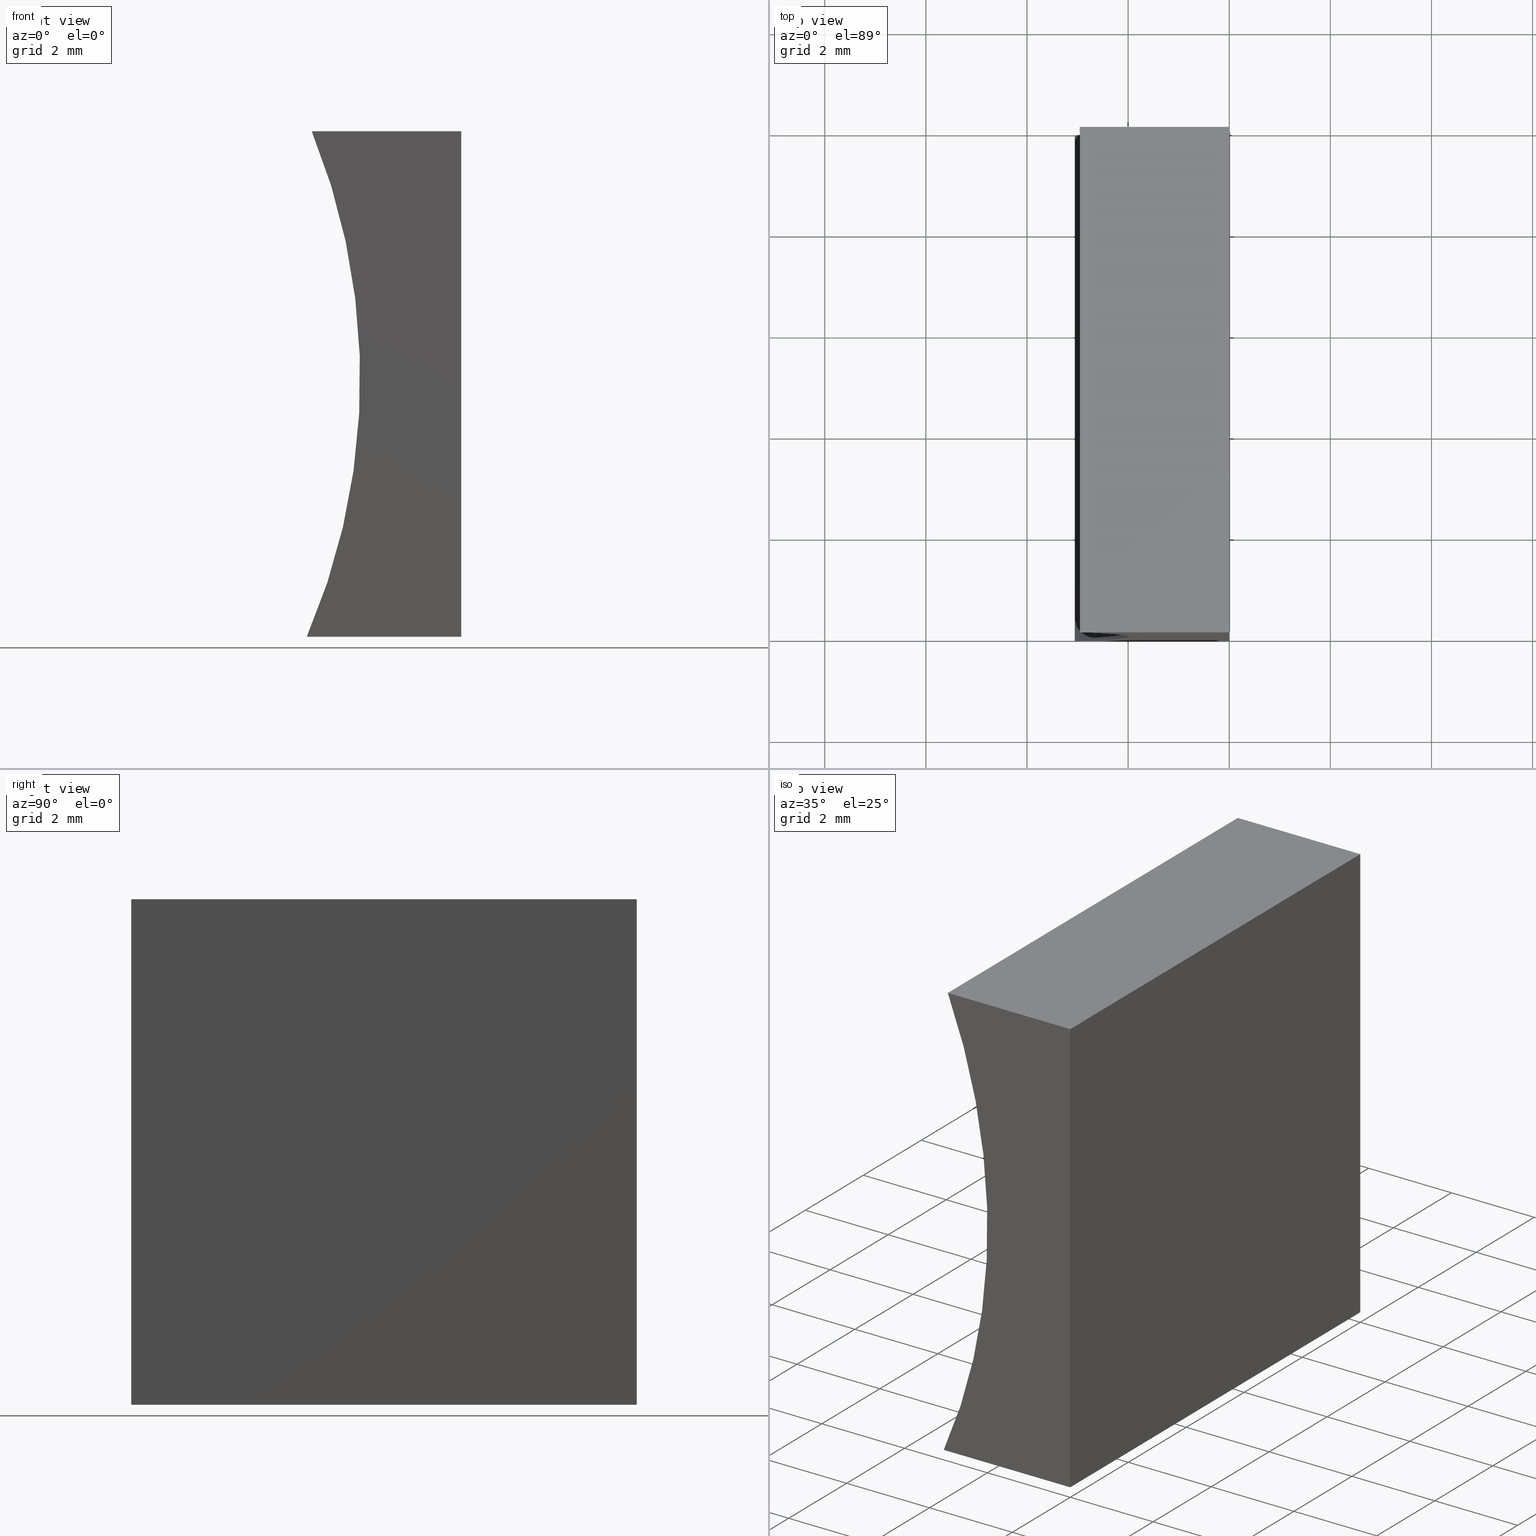
[diagram: canonical four-view strip — front | top / right | iso, engineering-drawing reading convention]
A machine part, canonical four-view strip (front | top / right | iso — engineering-drawing reading convention). The complete STEP part file that produces these views, byte-faithful:
ISO-10303-21;
HEADER;
FILE_DESCRIPTION (( 'STEP AP214' ),
    '1' );
FILE_NAME ('155336.STEP',
    '2019-06-27T03:36:32',
    ( 'user' ),
    ( '΢���й�' ),
    'SwSTEP 2.0',
    'SolidWorks 2016',
    '' );
FILE_SCHEMA (( 'AUTOMOTIVE_DESIGN' ));
ENDSEC;

DATA;
#1 = DIRECTION ( 'NONE',  ( -0.0000000000000000000, -1.000000000000000000, -0.0000000000000000000 ) ) ;
#2 = ORIENTED_EDGE ( 'NONE', *, *, #152, .F. ) ;
#3 = ADVANCED_FACE ( 'NONE', ( #167 ), #148, .F. ) ;
#4 = FACE_OUTER_BOUND ( 'NONE', #84, .T. ) ;
#5 = CARTESIAN_POINT ( 'NONE',  ( 6.123233995736766300E-016, 0.0000000000000000000, 10.00000000000000000 ) ) ;
#6 = VECTOR ( 'NONE', #92, 1000.000000000000000 ) ;
#7 = DIRECTION ( 'NONE',  ( -0.0000000000000000000, -1.000000000000000000, -0.0000000000000000000 ) ) ;
#8 = STYLED_ITEM ( 'NONE', ( #119 ), #177 ) ;
#9 = DIRECTION ( 'NONE',  ( -6.123233995736766000E-017, -0.0000000000000000000, -1.000000000000000000 ) ) ;
#10 = APPLICATION_PROTOCOL_DEFINITION ( 'draft international standard', 'automotive_design', 1998, #53 ) ;
#11 = VECTOR ( 'NONE', #195, 1000.000000000000000 ) ;
#12 = DIRECTION ( 'NONE',  ( -0.0000000000000000000, -1.000000000000000000, -0.0000000000000000000 ) ) ;
#13 = EDGE_CURVE ( 'NONE', #22, #166, #96, .T. ) ;
#14 = EDGE_LOOP ( 'NONE', ( #68, #75, #107, #154 ) ) ;
#15 = VERTEX_POINT ( 'NONE', #108 ) ;
#16 = PRODUCT ( '155336', '155336', '', ( #19 ) ) ;
#17 = AXIS2_PLACEMENT_3D ( 'NONE', #102, #112, #26 ) ;
#18 = ORIENTED_EDGE ( 'NONE', *, *, #180, .F. ) ;
#19 = PRODUCT_CONTEXT ( 'NONE', #131, 'mechanical' ) ;
#20 = ADVANCED_FACE ( 'NONE', ( #113 ), #35, .F. ) ;
#21 = FACE_OUTER_BOUND ( 'NONE', #33, .T. ) ;
#22 = VERTEX_POINT ( 'NONE', #40 ) ;
#23 = CARTESIAN_POINT ( 'NONE',  ( 0.0000000000000000000, 10.00000000000000000, 0.0000000000000000000 ) ) ;
#24 = AXIS2_PLACEMENT_3D ( 'NONE', #153, #89, #164 ) ;
#25 = CARTESIAN_POINT ( 'NONE',  ( 0.0000000000000000000, 10.00000000000000000, 0.0000000000000000000 ) ) ;
#26 = DIRECTION ( 'NONE',  ( 0.0000000000000000000, 0.0000000000000000000, 1.000000000000000000 ) ) ;
#27 = VECTOR ( 'NONE', #126, 1000.000000000000000 ) ;
#28 = EDGE_CURVE ( 'NONE', #166, #143, #172, .T. ) ;
#29 = CARTESIAN_POINT ( 'NONE',  ( -2.957014408104902800, 10.00000000000000000, 10.00000000000000000 ) ) ;
#30 = PLANE ( 'NONE',  #24 ) ;
#31 = DIRECTION ( 'NONE',  ( 0.0000000000000000000, 0.0000000000000000000, -1.000000000000000000 ) ) ;
#32 = ORIENTED_EDGE ( 'NONE', *, *, #28, .T. ) ;
#33 = EDGE_LOOP ( 'NONE', ( #65, #60, #146, #191 ) ) ;
#34 = UNCERTAINTY_MEASURE_WITH_UNIT (LENGTH_MEASURE( 1.000000000000000100E-005 ), #157, 'distance_accuracy_value', 'NONE');
#35 = PLANE ( 'NONE',  #158 ) ;
#36 =( LENGTH_UNIT ( ) NAMED_UNIT ( * ) SI_UNIT ( .MILLI., .METRE. ) );
#37 = ORIENTED_EDGE ( 'NONE', *, *, #134, .F. ) ;
#38 = VECTOR ( 'NONE', #61, 1000.000000000000000 ) ;
#39 = DIRECTION ( 'NONE',  ( -1.000000000000000000, 0.0000000000000000000, -4.475099880011462600E-027 ) ) ;
#40 = CARTESIAN_POINT ( 'NONE',  ( -2.957014408104902800, 10.00000000000000000, 10.00000000000000000 ) ) ;
#41 = AXIS2_PLACEMENT_3D ( 'NONE', #178, #50, #121 ) ;
#42 = SURFACE_SIDE_STYLE ('',( #109 ) ) ;
#43 = VECTOR ( 'NONE', #44, 1000.000000000000000 ) ;
#44 = DIRECTION ( 'NONE',  ( 1.000000000000000000, -0.0000000000000000000, -0.0000000000000000000 ) ) ;
#45 = CARTESIAN_POINT ( 'NONE',  ( 0.0000000000000000000, 0.0000000000000000000, 0.0000000000000000000 ) ) ;
#46 = CARTESIAN_POINT ( 'NONE',  ( 6.123233995736766300E-016, 10.00000000000000000, 10.00000000000000000 ) ) ;
#47 = VECTOR ( 'NONE', #9, 1000.000000000000000 ) ;
#48 = VECTOR ( 'NONE', #39, 1000.000000000000000 ) ;
#49 = DIRECTION ( 'NONE',  ( 0.0000000000000000000, -0.0000000000000000000, 1.000000000000000000 ) ) ;
#50 = DIRECTION ( 'NONE',  ( 0.0000000000000000000, 1.000000000000000000, 0.0000000000000000000 ) ) ;
#51 = DIRECTION ( 'NONE',  ( -4.475099880011462600E-027, 0.0000000000000000000, 1.000000000000000000 ) ) ;
#52 = CARTESIAN_POINT ( 'NONE',  ( -14.92935793985619200, 10.00000000000000000, 5.116569816437113600 ) ) ;
#53 = APPLICATION_CONTEXT ( 'automotive_design' ) ;
#54 = CIRCLE ( 'NONE', #58, 12.92999999999999600 ) ;
#55 = EDGE_CURVE ( 'NONE', #95, #197, #69, .T. ) ;
#56 = ORIENTED_EDGE ( 'NONE', *, *, #85, .F. ) ;
#57 = ORIENTED_EDGE ( 'NONE', *, *, #72, .F. ) ;
#58 = AXIS2_PLACEMENT_3D ( 'NONE', #174, #1, #110 ) ;
#59 = PRODUCT_DEFINITION_SHAPE ( 'NONE', 'NONE',  #125 ) ;
#60 = ORIENTED_EDGE ( 'NONE', *, *, #149, .F. ) ;
#61 = DIRECTION ( 'NONE',  ( -0.0000000000000000000, -1.000000000000000000, -0.0000000000000000000 ) ) ;
#62 = CARTESIAN_POINT ( 'NONE',  ( -2.957014408104902800, 0.0000000000000000000, 10.00000000000000000 ) ) ;
#63 =( NAMED_UNIT ( * ) PLANE_ANGLE_UNIT ( ) SI_UNIT ( $, .RADIAN. ) );
#64 = ORIENTED_EDGE ( 'NONE', *, *, #28, .F. ) ;
#65 = ORIENTED_EDGE ( 'NONE', *, *, #85, .T. ) ;
#66 = DIRECTION ( 'NONE',  ( 0.0000000000000000000, 0.0000000000000000000, 1.000000000000000000 ) ) ;
#67 = PRESENTATION_LAYER_ASSIGNMENT (  '', '', ( #8 ) ) ;
#68 = ORIENTED_EDGE ( 'NONE', *, *, #152, .T. ) ;
#69 = LINE ( 'NONE', #193, #103 ) ;
#70 = PRODUCT_DEFINITION_CONTEXT ( 'detailed design', #53, 'design' ) ;
#71 = CARTESIAN_POINT ( 'NONE',  ( 0.0000000000000000000, 10.00000000000000000, 0.0000000000000000000 ) ) ;
#72 = EDGE_CURVE ( 'NONE', #95, #22, #54, .T. ) ;
#73 = LINE ( 'NONE', #188, #48 ) ;
#74 = EDGE_CURVE ( 'NONE', #143, #95, #80, .T. ) ;
#75 = ORIENTED_EDGE ( 'NONE', *, *, #55, .F. ) ;
#76 = VECTOR ( 'NONE', #78, 1000.000000000000000 ) ;
#77 = MECHANICAL_DESIGN_GEOMETRIC_PRESENTATION_REPRESENTATION (  '', ( #203 ), #147 ) ;
#78 = DIRECTION ( 'NONE',  ( 1.000000000000000000, -0.0000000000000000000, -0.0000000000000000000 ) ) ;
#79 = DIRECTION ( 'NONE',  ( -1.000000000000000000, 0.0000000000000000000, 6.123233995736766000E-017 ) ) ;
#80 = LINE ( 'NONE', #173, #133 ) ;
#81 = ORIENTED_EDGE ( 'NONE', *, *, #116, .F. ) ;
#82 = SHAPE_DEFINITION_REPRESENTATION ( #59, #177 ) ;
#83 =( GEOMETRIC_REPRESENTATION_CONTEXT ( 3 ) GLOBAL_UNCERTAINTY_ASSIGNED_CONTEXT ( ( #132 ) ) GLOBAL_UNIT_ASSIGNED_CONTEXT ( ( #36, #169, #120 ) ) REPRESENTATION_CONTEXT ( 'NONE', 'WORKASPACE' ) );
#84 = EDGE_LOOP ( 'NONE', ( #2, #81, #56, #106 ) ) ;
#85 = EDGE_CURVE ( 'NONE', #155, #129, #196, .T. ) ;
#86 = CARTESIAN_POINT ( 'NONE',  ( 0.0000000000000000000, 0.0000000000000000000, 0.0000000000000000000 ) ) ;
#87 = CIRCLE ( 'NONE', #17, 12.92999999999999600 ) ;
#88 = SURFACE_STYLE_USAGE ( .BOTH. , #186 ) ;
#89 = DIRECTION ( 'NONE',  ( 0.0000000000000000000, 0.0000000000000000000, -1.000000000000000000 ) ) ;
#90 = AXIS2_PLACEMENT_3D ( 'NONE', #86, #66, #182 ) ;
#91 = LINE ( 'NONE', #45, #27 ) ;
#92 = DIRECTION ( 'NONE',  ( -0.0000000000000000000, -1.000000000000000000, -0.0000000000000000000 ) ) ;
#93 = ADVANCED_FACE ( 'NONE', ( #139 ), #176, .F. ) ;
#94 = LINE ( 'NONE', #142, #38 ) ;
#95 = VERTEX_POINT ( 'NONE', #140 ) ;
#96 = LINE ( 'NONE', #204, #43 ) ;
#97 = ORIENTED_EDGE ( 'NONE', *, *, #116, .T. ) ;
#98 = PRODUCT_DEFINITION_FORMATION_WITH_SPECIFIED_SOURCE ( '�κ�', '', #16, .NOT_KNOWN. ) ;
#99 = ORIENTED_EDGE ( 'NONE', *, *, #137, .T. ) ;
#100 = COLOUR_RGB ( '',1.000000000000000000, 1.000000000000000000, 1.000000000000000000 ) ;
#101 = PLANE ( 'NONE',  #144 ) ;
#102 = CARTESIAN_POINT ( 'NONE',  ( -14.92935793985619200, 0.0000000000000000000, 5.116569816437113600 ) ) ;
#103 = VECTOR ( 'NONE', #12, 1000.000000000000000 ) ;
#104 =( NAMED_UNIT ( * ) SI_UNIT ( $, .STERADIAN. ) SOLID_ANGLE_UNIT ( ) );
#105 = ORIENTED_EDGE ( 'NONE', *, *, #13, .T. ) ;
#106 = ORIENTED_EDGE ( 'NONE', *, *, #137, .F. ) ;
#107 = ORIENTED_EDGE ( 'NONE', *, *, #74, .F. ) ;
#108 = CARTESIAN_POINT ( 'NONE',  ( 0.0000000000000000000, 0.0000000000000000000, 0.0000000000000000000 ) ) ;
#109 = SURFACE_STYLE_FILL_AREA ( #145 ) ;
#110 = DIRECTION ( 'NONE',  ( 0.0000000000000000000, 0.0000000000000000000, 1.000000000000000000 ) ) ;
#111 = CARTESIAN_POINT ( 'NONE',  ( 6.123233995736766300E-016, 0.0000000000000000000, 10.00000000000000000 ) ) ;
#112 = DIRECTION ( 'NONE',  ( -0.0000000000000000000, -1.000000000000000000, -0.0000000000000000000 ) ) ;
#113 = FACE_OUTER_BOUND ( 'NONE', #14, .T. ) ;
#114 = FACE_OUTER_BOUND ( 'NONE', #138, .T. ) ;
#115 = PRESENTATION_LAYER_ASSIGNMENT (  '', '', ( #203 ) ) ;
#116 = EDGE_CURVE ( 'NONE', #129, #15, #91, .T. ) ;
#117 = CARTESIAN_POINT ( 'NONE',  ( -3.054779492032261100, 0.0000000000000000000, 0.0000000000000000000 ) ) ;
#118 = PLANE ( 'NONE',  #41 ) ;
#119 = PRESENTATION_STYLE_ASSIGNMENT (( #88 ) ) ;
#120 =( NAMED_UNIT ( * ) SI_UNIT ( $, .STERADIAN. ) SOLID_ANGLE_UNIT ( ) );
#121 = DIRECTION ( 'NONE',  ( 0.0000000000000000000, -0.0000000000000000000, 1.000000000000000000 ) ) ;
#122 = CLOSED_SHELL ( 'NONE', ( #20, #3, #181, #93, #141, #156 ) ) ;
#123 =( NAMED_UNIT ( * ) PLANE_ANGLE_UNIT ( ) SI_UNIT ( $, .RADIAN. ) );
#124 = PRESENTATION_STYLE_ASSIGNMENT (( #163 ) ) ;
#125 = PRODUCT_DEFINITION ( 'δ֪', '', #98, #70 ) ;
#126 = DIRECTION ( 'NONE',  ( -6.123233995736766000E-017, -0.0000000000000000000, -1.000000000000000000 ) ) ;
#127 = DIRECTION ( 'NONE',  ( 0.0000000000000000000, 1.000000000000000000, 0.0000000000000000000 ) ) ;
#128 = FILL_AREA_STYLE_COLOUR ( '', #192 ) ;
#129 = VERTEX_POINT ( 'NONE', #111 ) ;
#130 = AXIS2_PLACEMENT_3D ( 'NONE', #52, #7, #31 ) ;
#131 = APPLICATION_CONTEXT ( 'automotive_design' ) ;
#132 = UNCERTAINTY_MEASURE_WITH_UNIT (LENGTH_MEASURE( 1.000000000000000100E-005 ), #36, 'distance_accuracy_value', 'NONE');
#133 = VECTOR ( 'NONE', #202, 1000.000000000000000 ) ;
#134 = EDGE_CURVE ( 'NONE', #143, #15, #162, .T. ) ;
#135 =( GEOMETRIC_REPRESENTATION_CONTEXT ( 3 ) GLOBAL_UNCERTAINTY_ASSIGNED_CONTEXT ( ( #168 ) ) GLOBAL_UNIT_ASSIGNED_CONTEXT ( ( #187, #63, #104 ) ) REPRESENTATION_CONTEXT ( 'NONE', 'WORKASPACE' ) );
#136 = FILL_AREA_STYLE_COLOUR ( '', #100 ) ;
#137 = EDGE_CURVE ( 'NONE', #197, #155, #87, .T. ) ;
#138 = EDGE_LOOP ( 'NONE', ( #159, #200, #105, #32 ) ) ;
#139 = FACE_OUTER_BOUND ( 'NONE', #183, .T. ) ;
#140 = CARTESIAN_POINT ( 'NONE',  ( -3.054779492032261100, 10.00000000000000000, 0.0000000000000000000 ) ) ;
#141 = ADVANCED_FACE ( 'NONE', ( #114 ), #101, .T. ) ;
#142 = CARTESIAN_POINT ( 'NONE',  ( 6.123233995736766300E-016, 10.00000000000000000, 10.00000000000000000 ) ) ;
#143 = VERTEX_POINT ( 'NONE', #190 ) ;
#144 = AXIS2_PLACEMENT_3D ( 'NONE', #161, #127, #49 ) ;
#145 = FILL_AREA_STYLE ('',( #128 ) ) ;
#146 = ORIENTED_EDGE ( 'NONE', *, *, #13, .F. ) ;
#147 =( GEOMETRIC_REPRESENTATION_CONTEXT ( 3 ) GLOBAL_UNCERTAINTY_ASSIGNED_CONTEXT ( ( #34 ) ) GLOBAL_UNIT_ASSIGNED_CONTEXT ( ( #157, #123, #165 ) ) REPRESENTATION_CONTEXT ( 'NONE', 'WORKASPACE' ) );
#148 = CYLINDRICAL_SURFACE ( 'NONE', #130, 12.92999999999999600 ) ;
#149 = EDGE_CURVE ( 'NONE', #166, #129, #94, .T. ) ;
#150 = LINE ( 'NONE', #29, #11 ) ;
#151 = APPLICATION_PROTOCOL_DEFINITION ( 'draft international standard', 'automotive_design', 1998, #131 ) ;
#152 = EDGE_CURVE ( 'NONE', #15, #197, #73, .T. ) ;
#153 = CARTESIAN_POINT ( 'NONE',  ( 6.123233995736766300E-016, 10.00000000000000000, 10.00000000000000000 ) ) ;
#154 = ORIENTED_EDGE ( 'NONE', *, *, #134, .T. ) ;
#155 = VERTEX_POINT ( 'NONE', #62 ) ;
#156 = ADVANCED_FACE ( 'NONE', ( #4 ), #118, .F. ) ;
#157 =( LENGTH_UNIT ( ) NAMED_UNIT ( * ) SI_UNIT ( .MILLI., .METRE. ) );
#158 = AXIS2_PLACEMENT_3D ( 'NONE', #170, #51, #194 ) ;
#159 = ORIENTED_EDGE ( 'NONE', *, *, #74, .T. ) ;
#160 = FILL_AREA_STYLE ('',( #136 ) ) ;
#161 = CARTESIAN_POINT ( 'NONE',  ( -14.92935793985619200, 10.00000000000000000, 5.116569816437113600 ) ) ;
#162 = LINE ( 'NONE', #25, #6 ) ;
#163 = SURFACE_STYLE_USAGE ( .BOTH. , #42 ) ;
#164 = DIRECTION ( 'NONE',  ( -1.000000000000000000, 0.0000000000000000000, -0.0000000000000000000 ) ) ;
#165 =( NAMED_UNIT ( * ) SI_UNIT ( $, .STERADIAN. ) SOLID_ANGLE_UNIT ( ) );
#166 = VERTEX_POINT ( 'NONE', #46 ) ;
#167 = FACE_OUTER_BOUND ( 'NONE', #175, .T. ) ;
#168 = UNCERTAINTY_MEASURE_WITH_UNIT (LENGTH_MEASURE( 1.000000000000000100E-005 ), #187, 'distance_accuracy_value', 'NONE');
#169 =( NAMED_UNIT ( * ) PLANE_ANGLE_UNIT ( ) SI_UNIT ( $, .RADIAN. ) );
#170 = CARTESIAN_POINT ( 'NONE',  ( 0.0000000000000000000, 10.00000000000000000, 0.0000000000000000000 ) ) ;
#171 = SURFACE_STYLE_FILL_AREA ( #160 ) ;
#172 = LINE ( 'NONE', #71, #47 ) ;
#173 = CARTESIAN_POINT ( 'NONE',  ( 0.0000000000000000000, 10.00000000000000000, 0.0000000000000000000 ) ) ;
#174 = CARTESIAN_POINT ( 'NONE',  ( -14.92935793985619200, 10.00000000000000000, 5.116569816437113600 ) ) ;
#175 = EDGE_LOOP ( 'NONE', ( #99, #18, #57, #179 ) ) ;
#176 = PLANE ( 'NONE',  #201 ) ;
#177 = ADVANCED_BREP_SHAPE_REPRESENTATION ( '155336', ( #198, #90 ), #135 ) ;
#178 = CARTESIAN_POINT ( 'NONE',  ( -14.92935793985619200, 0.0000000000000000000, 5.116569816437113600 ) ) ;
#179 = ORIENTED_EDGE ( 'NONE', *, *, #55, .T. ) ;
#180 = EDGE_CURVE ( 'NONE', #22, #155, #150, .T. ) ;
#181 = ADVANCED_FACE ( 'NONE', ( #21 ), #30, .F. ) ;
#182 = DIRECTION ( 'NONE',  ( 1.000000000000000000, 0.0000000000000000000, 0.0000000000000000000 ) ) ;
#183 = EDGE_LOOP ( 'NONE', ( #97, #37, #64, #185 ) ) ;
#184 = MECHANICAL_DESIGN_GEOMETRIC_PRESENTATION_REPRESENTATION (  '', ( #8 ), #83 ) ;
#185 = ORIENTED_EDGE ( 'NONE', *, *, #149, .T. ) ;
#186 = SURFACE_SIDE_STYLE ('',( #171 ) ) ;
#187 =( LENGTH_UNIT ( ) NAMED_UNIT ( * ) SI_UNIT ( .MILLI., .METRE. ) );
#188 = CARTESIAN_POINT ( 'NONE',  ( 0.0000000000000000000, 0.0000000000000000000, 0.0000000000000000000 ) ) ;
#189 = DIRECTION ( 'NONE',  ( 6.123233995736766000E-017, 0.0000000000000000000, 1.000000000000000000 ) ) ;
#190 = CARTESIAN_POINT ( 'NONE',  ( 0.0000000000000000000, 10.00000000000000000, 0.0000000000000000000 ) ) ;
#191 = ORIENTED_EDGE ( 'NONE', *, *, #180, .T. ) ;
#192 = COLOUR_RGB ( '',1.000000000000000000, 1.000000000000000000, 1.000000000000000000 ) ;
#193 = CARTESIAN_POINT ( 'NONE',  ( -3.054779492032261100, 10.00000000000000000, 0.0000000000000000000 ) ) ;
#194 = DIRECTION ( 'NONE',  ( 1.000000000000000000, 0.0000000000000000000, 4.475099880011462600E-027 ) ) ;
#195 = DIRECTION ( 'NONE',  ( -0.0000000000000000000, -1.000000000000000000, -0.0000000000000000000 ) ) ;
#196 = LINE ( 'NONE', #5, #76 ) ;
#197 = VERTEX_POINT ( 'NONE', #117 ) ;
#198 = MANIFOLD_SOLID_BREP ( '͹̨-����1', #122 ) ;
#199 = PRODUCT_RELATED_PRODUCT_CATEGORY ( 'part', '', ( #16 ) ) ;
#200 = ORIENTED_EDGE ( 'NONE', *, *, #72, .T. ) ;
#201 = AXIS2_PLACEMENT_3D ( 'NONE', #23, #79, #189 ) ;
#202 = DIRECTION ( 'NONE',  ( -1.000000000000000000, 0.0000000000000000000, -4.475099880011462600E-027 ) ) ;
#203 = STYLED_ITEM ( 'NONE', ( #124 ), #198 ) ;
#204 = CARTESIAN_POINT ( 'NONE',  ( 6.123233995736766300E-016, 10.00000000000000000, 10.00000000000000000 ) ) ;
ENDSEC;
END-ISO-10303-21;
